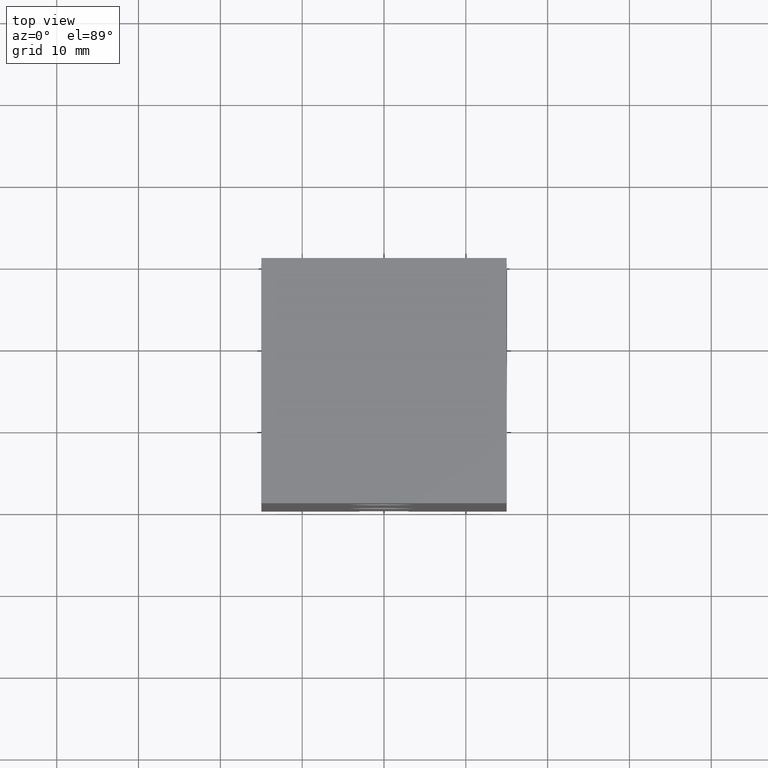
[diagram: clean part render]
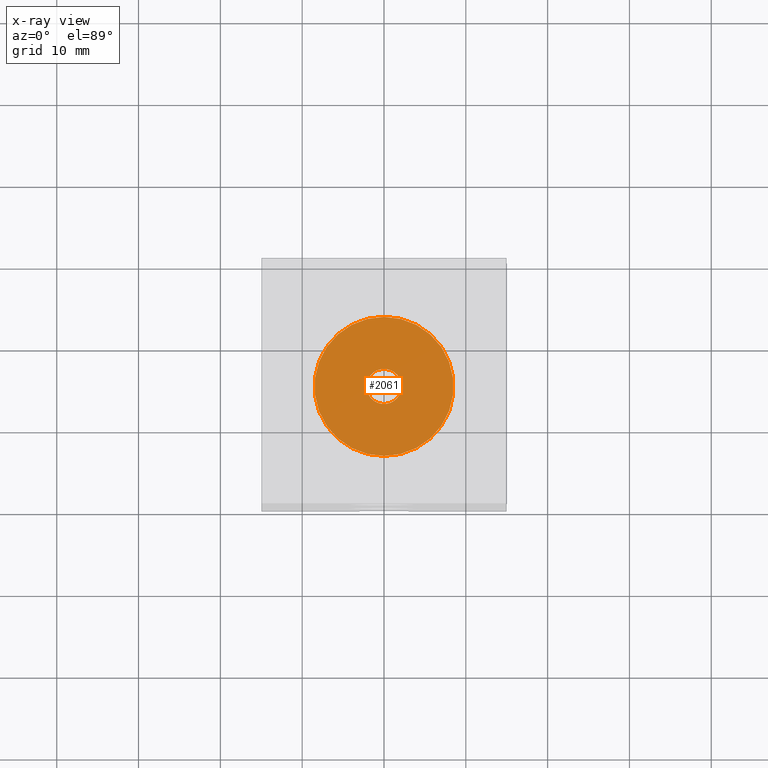
[diagram: x-ray — body ghosted, one internal face saturated and labeled with its STEP entity id]
A machine part, top view, then the same camera in x-ray: the body is ghosted and one INTERNAL B-rep face — a face not visible from any outside direction — is saturated and labeled: STEP entity #2061.
In plain terms, the highlighted planar face has unit normal (0, 0, 1).
Its self-contained STEP definition (entity closure, byte-faithful):
#656=CARTESIAN_POINT('',(0.E0,6.108661417323E-1,-2.822283464567E0));
#657=DIRECTION('',(0.E0,0.E0,1.E0));
#658=DIRECTION('',(0.E0,-1.E0,0.E0));
#659=AXIS2_PLACEMENT_3D('',#656,#657,#658);
#687=CARTESIAN_POINT('',(0.E0,6.108661417323E-1,-2.822283464567E0));
#688=DIRECTION('',(0.E0,0.E0,1.E0));
#689=DIRECTION('',(0.E0,1.E0,0.E0));
#690=AXIS2_PLACEMENT_3D('',#687,#688,#689);
#726=CARTESIAN_POINT('',(0.E0,6.108661417323E-1,-2.822283464567E0));
#727=DIRECTION('',(0.E0,0.E0,-1.E0));
#728=DIRECTION('',(-1.E0,0.E0,0.E0));
#729=AXIS2_PLACEMENT_3D('',#726,#727,#728);
#1296=CARTESIAN_POINT('',(0.E0,6.108661417323E-1,-2.822283464567E0));
#1297=DIRECTION('',(0.E0,0.E0,-1.E0));
#1298=DIRECTION('',(1.E0,0.E0,0.E0));
#1299=AXIS2_PLACEMENT_3D('',#1296,#1297,#1298);
#1511=CARTESIAN_POINT('',(8.464566929134E-2,6.108661417323E-1,
-2.822283464567E0));
#1512=VERTEX_POINT('',#1511);
#1513=CARTESIAN_POINT('',(-8.464566929134E-2,6.108661417323E-1,
-2.822283464567E0));
#1514=VERTEX_POINT('',#1513);
#1515=CARTESIAN_POINT('',(0.E0,9.455118110236E-1,-2.822283464567E0));
#1516=CARTESIAN_POINT('',(0.E0,2.762204724410E-1,-2.822283464567E0));
#1517=VERTEX_POINT('',#1515);
#1518=VERTEX_POINT('',#1516);
#2046=CARTESIAN_POINT('',(0.E0,6.108661417323E-1,-2.822283464567E0));
#2047=DIRECTION('',(0.E0,0.E0,1.E0));
#2048=DIRECTION('',(0.E0,1.E0,0.E0));
#2049=AXIS2_PLACEMENT_3D('',#2046,#2047,#2048);
#2050=PLANE('',#2049);
#2051=ORIENTED_EDGE('',*,*,#2037,.F.);
#2052=ORIENTED_EDGE('',*,*,#2019,.F.);
#2053=EDGE_LOOP('',(#2051,#2052));
#2054=FACE_OUTER_BOUND('',#2053,.F.);
#2056=ORIENTED_EDGE('',*,*,#2055,.F.);
#2058=ORIENTED_EDGE('',*,*,#2057,.F.);
#2059=EDGE_LOOP('',(#2056,#2058));
#2060=FACE_BOUND('',#2059,.F.);
#2061=ADVANCED_FACE('',(#2054,#2060),#2050,.T.);
#660=CIRCLE('',#659,3.346456692913E-1);
#691=CIRCLE('',#690,3.346456692913E-1);
#730=CIRCLE('',#729,8.464566929134E-2);
#1300=CIRCLE('',#1299,8.464566929134E-2);
#2019=EDGE_CURVE('',#1518,#1517,#660,.T.);
#2037=EDGE_CURVE('',#1517,#1518,#691,.T.);
#2055=EDGE_CURVE('',#1514,#1512,#730,.T.);
#2057=EDGE_CURVE('',#1512,#1514,#1300,.T.);